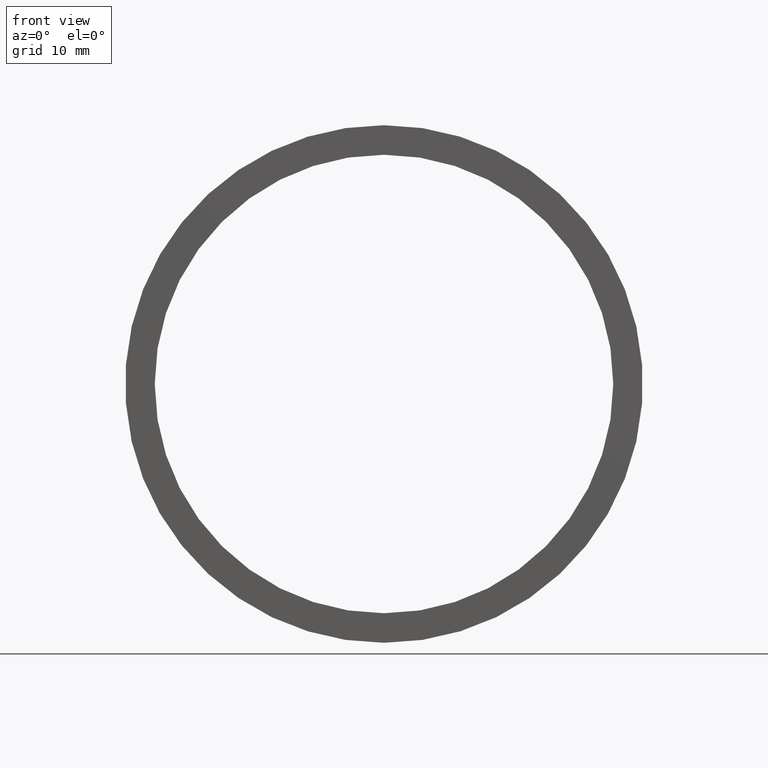
[diagram: clean part render]
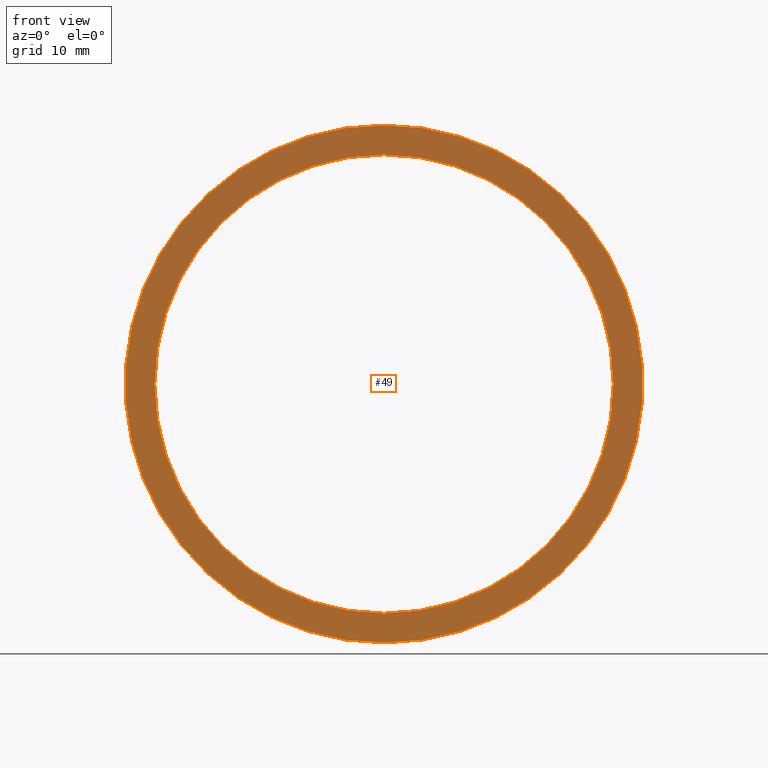
[diagram: same view with one face highlighted and labeled with its STEP entity id]
A machine part, front view. The second image highlights one B-rep face of the part: STEP entity #49.
In plain terms, the highlighted planar face has unit normal (-0, 1, 0).
Its self-contained STEP definition (entity closure, byte-faithful):
#20 = VERTEX_POINT ( 'NONE', #79 ) ;
#26 = CARTESIAN_POINT ( 'NONE',  ( 0.0000000000000000000, 0.0000000000000000000, 0.0000000000000000000 ) ) ;
#33 = DIRECTION ( 'NONE',  ( 0.0000000000000000000, 0.0000000000000000000, 1.000000000000000000 ) ) ;
#39 = VERTEX_POINT ( 'NONE', #158 ) ;
#40 = EDGE_CURVE ( 'NONE', #20, #39, #123, .T. ) ;
#49 = ADVANCED_FACE ( 'NONE', ( #105, #58 ), #134, .F. ) ;
#53 = CARTESIAN_POINT ( 'NONE',  ( 0.0000000000000000000, 0.0000000000000000000, 0.0000000000000000000 ) ) ;
#55 = DIRECTION ( 'NONE',  ( 0.0000000000000000000, 0.0000000000000000000, 1.000000000000000000 ) ) ;
#58 = FACE_BOUND ( 'NONE', #124, .T. ) ;
#60 = DIRECTION ( 'NONE',  ( -0.0000000000000000000, 1.000000000000000000, -0.0000000000000000000 ) ) ;
#75 = AXIS2_PLACEMENT_3D ( 'NONE', #217, #176, #177 ) ;
#79 = CARTESIAN_POINT ( 'NONE',  ( 0.0000000000000000000, 0.0000000000000000000, 25.40000000000000900 ) ) ;
#93 = CIRCLE ( 'NONE', #127, 22.50000000000001100 ) ;
#99 = ORIENTED_EDGE ( 'NONE', *, *, #204, .F. ) ;
#105 = FACE_OUTER_BOUND ( 'NONE', #112, .T. ) ;
#112 = EDGE_LOOP ( 'NONE', ( #236, #99 ) ) ;
#120 = CARTESIAN_POINT ( 'NONE',  ( 0.0000000000000000000, 0.0000000000000000000, 0.0000000000000000000 ) ) ;
#121 = CARTESIAN_POINT ( 'NONE',  ( 0.0000000000000000000, 0.0000000000000000000, 22.50000000000001100 ) ) ;
#123 = CIRCLE ( 'NONE', #199, 25.40000000000000900 ) ;
#124 = EDGE_LOOP ( 'NONE', ( #230, #193 ) ) ;
#127 = AXIS2_PLACEMENT_3D ( 'NONE', #188, #60, #210 ) ;
#134 = PLANE ( 'NONE',  #75 ) ;
#142 = DIRECTION ( 'NONE',  ( -0.0000000000000000000, 1.000000000000000000, -0.0000000000000000000 ) ) ;
#145 = CARTESIAN_POINT ( 'NONE',  ( 2.755455298081546000E-015, 0.0000000000000000000, -22.50000000000001100 ) ) ;
#155 = VERTEX_POINT ( 'NONE', #121 ) ;
#158 = CARTESIAN_POINT ( 'NONE',  ( 3.110602869834278000E-015, 0.0000000000000000000, -25.40000000000000900 ) ) ;
#172 = AXIS2_PLACEMENT_3D ( 'NONE', #53, #185, #55 ) ;
#174 = CIRCLE ( 'NONE', #172, 25.40000000000000900 ) ;
#176 = DIRECTION ( 'NONE',  ( -0.0000000000000000000, 1.000000000000000000, 0.0000000000000000000 ) ) ;
#177 = DIRECTION ( 'NONE',  ( 0.0000000000000000000, 0.0000000000000000000, 1.000000000000000000 ) ) ;
#185 = DIRECTION ( 'NONE',  ( -0.0000000000000000000, 1.000000000000000000, -0.0000000000000000000 ) ) ;
#188 = CARTESIAN_POINT ( 'NONE',  ( 0.0000000000000000000, 0.0000000000000000000, 0.0000000000000000000 ) ) ;
#193 = ORIENTED_EDGE ( 'NONE', *, *, #232, .T. ) ;
#194 = AXIS2_PLACEMENT_3D ( 'NONE', #120, #142, #33 ) ;
#199 = AXIS2_PLACEMENT_3D ( 'NONE', #26, #240, #219 ) ;
#204 = EDGE_CURVE ( 'NONE', #39, #20, #174, .T. ) ;
#210 = DIRECTION ( 'NONE',  ( 0.0000000000000000000, 0.0000000000000000000, 1.000000000000000000 ) ) ;
#211 = EDGE_CURVE ( 'NONE', #155, #223, #241, .T. ) ;
#217 = CARTESIAN_POINT ( 'NONE',  ( 22.50000000000001100, -1.836970198721023800E-016, 0.0000000000000000000 ) ) ;
#219 = DIRECTION ( 'NONE',  ( 0.0000000000000000000, 0.0000000000000000000, 1.000000000000000000 ) ) ;
#223 = VERTEX_POINT ( 'NONE', #145 ) ;
#230 = ORIENTED_EDGE ( 'NONE', *, *, #211, .T. ) ;
#232 = EDGE_CURVE ( 'NONE', #223, #155, #93, .T. ) ;
#236 = ORIENTED_EDGE ( 'NONE', *, *, #40, .F. ) ;
#240 = DIRECTION ( 'NONE',  ( -0.0000000000000000000, 1.000000000000000000, -0.0000000000000000000 ) ) ;
#241 = CIRCLE ( 'NONE', #194, 22.50000000000001100 ) ;